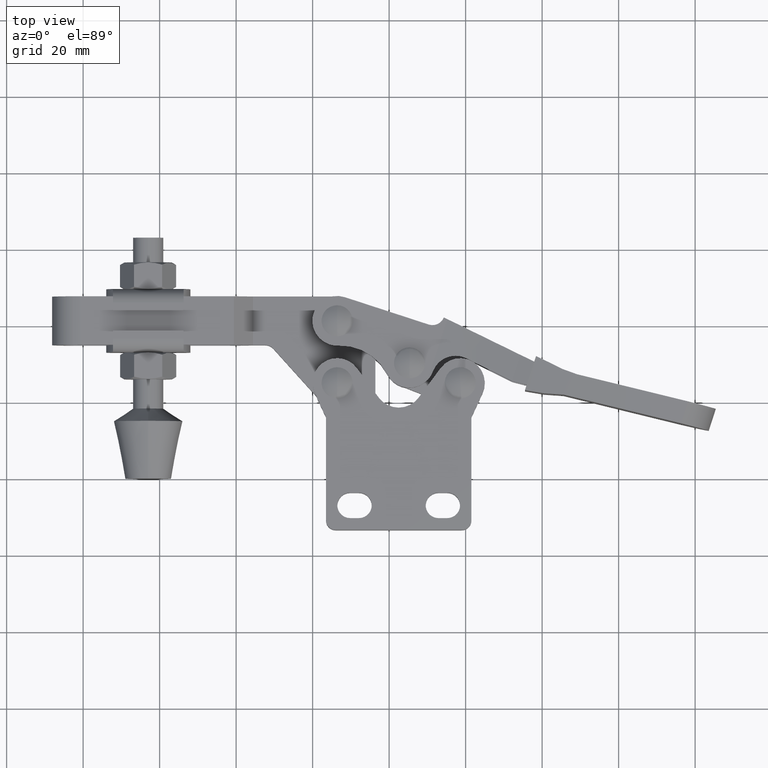
[diagram: clean part render]
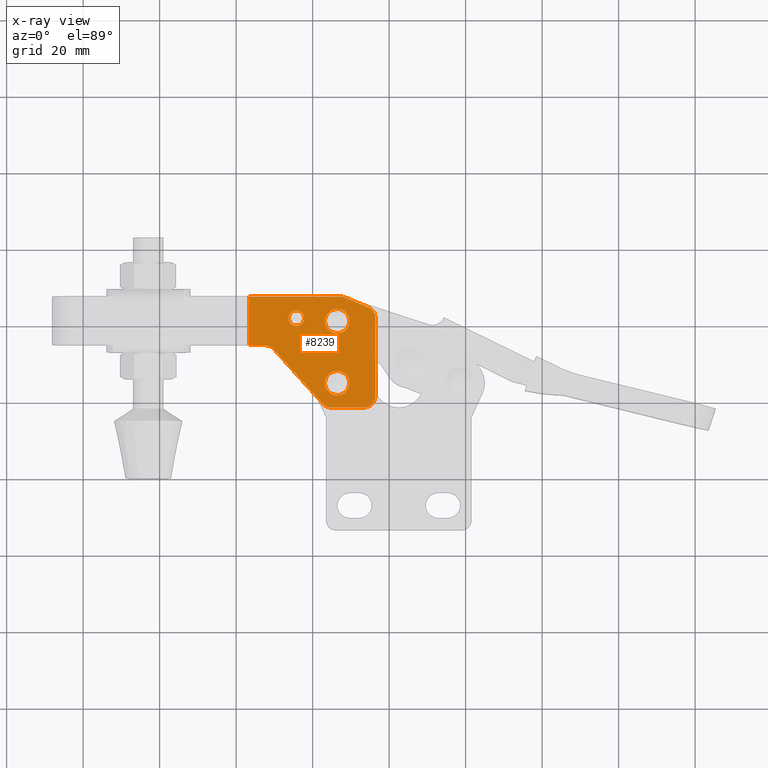
[diagram: x-ray — body ghosted, one internal face saturated and labeled with its STEP entity id]
A machine part, top view, then the same camera in x-ray: the body is ghosted and one INTERNAL B-rep face — a face not visible from any outside direction — is saturated and labeled: STEP entity #8239.
In plain terms, the highlighted planar face has unit normal (0, 0, 1).
Its self-contained STEP definition (entity closure, byte-faithful):
#51 = VECTOR ( 'NONE', #10183, 999.9999999999998900 ) ;
#71 = CARTESIAN_POINT ( 'NONE',  ( 4.915478178523979800, 21.59999707674871400, 0.006213737008450817700 ) ) ;
#107 = ORIENTED_EDGE ( 'NONE', *, *, #9614, .F. ) ;
#209 = AXIS2_PLACEMENT_3D ( 'NONE', #6476, #1558, #7329 ) ;
#241 = FACE_BOUND ( 'NONE', #6194, .T. ) ;
#253 = CARTESIAN_POINT ( 'NONE',  ( 6.399999999992722600, 41.19999707674865200, 0.006213737008450817700 ) ) ;
#259 = VERTEX_POINT ( 'NONE', #401 ) ;
#314 = VERTEX_POINT ( 'NONE', #9242 ) ;
#401 = CARTESIAN_POINT ( 'NONE',  ( -4.250000000007327500, 39.99999707674856400, 0.006213737008450817700 ) ) ;
#455 = EDGE_CURVE ( 'NONE', #6274, #5202, #5215, .T. ) ;
#465 = AXIS2_PLACEMENT_3D ( 'NONE', #253, #5980, #1087 ) ;
#486 = ORIENTED_EDGE ( 'NONE', *, *, #455, .T. ) ;
#526 = VERTEX_POINT ( 'NONE', #765 ) ;
#662 = ORIENTED_EDGE ( 'NONE', *, *, #9995, .T. ) ;
#765 = CARTESIAN_POINT ( 'NONE',  ( 9.574999999992650500, 41.19999707674865200, 0.006213737008450817700 ) ) ;
#871 = VERTEX_POINT ( 'NONE', #6235 ) ;
#882 = VERTEX_POINT ( 'NONE', #1080 ) ;
#893 = CIRCLE ( 'NONE', #4827, 2.000000000000001800 ) ;
#895 = DIRECTION ( 'NONE',  ( 0.0000000000000000000, -1.000000000000000000, 0.0000000000000000000 ) ) ;
#982 = AXIS2_PLACEMENT_3D ( 'NONE', #1390, #7144, #2208 ) ;
#1062 = DIRECTION ( 'NONE',  ( -1.940508389786499800E-033, -3.189280953627393800E-031, -1.000000000000000000 ) ) ;
#1080 = CARTESIAN_POINT ( 'NONE',  ( 9.574999999992650500, 24.99999707674879100, 0.006213737008450817700 ) ) ;
#1087 = DIRECTION ( 'NONE',  ( 0.0000000000000000000, -1.000000000000000000, 0.0000000000000000000 ) ) ;
#1234 = DIRECTION ( 'NONE',  ( -0.6692165548691980700, 0.7430674280904806500, 2.839109783880072900E-029 ) ) ;
#1274 = EDGE_CURVE ( 'NONE', #871, #7034, #3768, .T. ) ;
#1286 = ORIENTED_EDGE ( 'NONE', *, *, #5038, .F. ) ;
#1318 = CARTESIAN_POINT ( 'NONE',  ( 3.224999999992794700, 41.19999707674865200, 0.006213737008450817700 ) ) ;
#1390 = CARTESIAN_POINT ( 'NONE',  ( 13.39999999999262000, 21.59999707674871400, 0.006213737008450817700 ) ) ;
#1442 = CARTESIAN_POINT ( 'NONE',  ( -16.66435846768013500, 34.89999707674869700, 0.006213737008449083000 ) ) ;
#1498 = EDGE_CURVE ( 'NONE', #7827, #4948, #8796, .T. ) ;
#1535 = CARTESIAN_POINT ( 'NONE',  ( -68.10000000000707100, 34.89999707674869700, 0.006213737008450817700 ) ) ;
#1558 = DIRECTION ( 'NONE',  ( 1.940508389786499800E-033, 3.189280953627393800E-031, 1.000000000000000000 ) ) ;
#1587 = VECTOR ( 'NONE', #3381, 1000.000000000000000 ) ;
#1712 = ORIENTED_EDGE ( 'NONE', *, *, #3394, .T. ) ;
#1778 = ORIENTED_EDGE ( 'NONE', *, *, #3289, .T. ) ;
#1801 = AXIS2_PLACEMENT_3D ( 'NONE', #2588, #4154, #4968 ) ;
#1888 = DIRECTION ( 'NONE',  ( 0.0000000000000000000, -1.000000000000000000, 0.0000000000000000000 ) ) ;
#1949 = ORIENTED_EDGE ( 'NONE', *, *, #8623, .T. ) ;
#1969 = CIRCLE ( 'NONE', #1801, 3.174999999999927900 ) ;
#2014 = CARTESIAN_POINT ( 'NONE',  ( -16.66435846768014200, 47.59999707674866400, 0.006213737008450817700 ) ) ;
#2074 = CARTESIAN_POINT ( 'NONE',  ( -25.70849758897743300, 47.59999707674866400, 0.006213737008450817700 ) ) ;
#2099 = VERTEX_POINT ( 'NONE', #6563 ) ;
#2128 = EDGE_CURVE ( 'NONE', #259, #3087, #4141, .T. ) ;
#2183 = ORIENTED_EDGE ( 'NONE', *, *, #9192, .T. ) ;
#2206 = AXIS2_PLACEMENT_3D ( 'NONE', #7643, #10141, #1888 ) ;
#2208 = DIRECTION ( 'NONE',  ( 0.0000000000000000000, -1.000000000000000000, 0.0000000000000000000 ) ) ;
#2309 = ORIENTED_EDGE ( 'NONE', *, *, #6416, .F. ) ;
#2419 = DIRECTION ( 'NONE',  ( -1.940508389786499800E-033, -3.189280953627393800E-031, -1.000000000000000000 ) ) ;
#2435 = EDGE_LOOP ( 'NONE', ( #4852, #107 ) ) ;
#2528 = EDGE_CURVE ( 'NONE', #882, #314, #1969, .T. ) ;
#2560 = EDGE_LOOP ( 'NONE', ( #5133, #2309 ) ) ;
#2588 = CARTESIAN_POINT ( 'NONE',  ( 6.399999999992722600, 24.99999707674879100, 0.006213737008450817700 ) ) ;
#2671 = VERTEX_POINT ( 'NONE', #3600 ) ;
#2844 = CARTESIAN_POINT ( 'NONE',  ( 16.39999999999245600, 42.08881813416093800, 0.006213737008450817700 ) ) ;
#2877 = CIRCLE ( 'NONE', #209, 3.000000000000075500 ) ;
#3046 = VECTOR ( 'NONE', #7686, 1000.000000000000000 ) ;
#3048 = DIRECTION ( 'NONE',  ( -8.673617379884033500E-019, 1.000000000000000000, -1.577721810442023300E-030 ) ) ;
#3087 = VERTEX_POINT ( 'NONE', #9305 ) ;
#3184 = CIRCLE ( 'NONE', #6481, 3.000000000000023500 ) ;
#3268 = DIRECTION ( 'NONE',  ( -1.940508389786499800E-033, -3.189280953627393800E-031, -1.000000000000000000 ) ) ;
#3278 = CARTESIAN_POINT ( 'NONE',  ( -4.250000000007327500, 41.99999707674856400, 0.006213737008450817700 ) ) ;
#3289 = EDGE_CURVE ( 'NONE', #2099, #7034, #10487, .T. ) ;
#3381 = DIRECTION ( 'NONE',  ( 1.000000000000000000, 8.673617379884033500E-019, -4.417621069237665000E-029 ) ) ;
#3394 = EDGE_CURVE ( 'NONE', #4948, #5149, #3446, .T. ) ;
#3437 = EDGE_CURVE ( 'NONE', #3506, #7827, #3184, .T. ) ;
#3446 = CIRCLE ( 'NONE', #4829, 3.000000000000058200 ) ;
#3506 = VERTEX_POINT ( 'NONE', #9105 ) ;
#3600 = CARTESIAN_POINT ( 'NONE',  ( -10.20627589426734400, 33.90764674135629500, 0.006213737008450817700 ) ) ;
#3736 = CARTESIAN_POINT ( 'NONE',  ( -16.66435846768014200, 47.59999707674866400, 0.006213737008450817700 ) ) ;
#3768 = LINE ( 'NONE', #5331, #1587 ) ;
#3824 = FACE_BOUND ( 'NONE', #2560, .T. ) ;
#3850 = CARTESIAN_POINT ( 'NONE',  ( 16.39999999999274000, 47.59999707674866400, 0.006213737008450817700 ) ) ;
#4024 = VECTOR ( 'NONE', #9834, 1000.000000000000000 ) ;
#4073 = DIRECTION ( 'NONE',  ( 0.0000000000000000000, -1.000000000000000000, 0.0000000000000000000 ) ) ;
#4079 = EDGE_CURVE ( 'NONE', #871, #10396, #8032, .T. ) ;
#4141 = CIRCLE ( 'NONE', #2206, 2.000000000000001800 ) ;
#4154 = DIRECTION ( 'NONE',  ( -1.940508389786499800E-033, -3.189280953627393800E-031, -1.000000000000000000 ) ) ;
#4319 = CARTESIAN_POINT ( 'NONE',  ( 8.449102400178132300, 47.37372243148757900, 0.006213737008451685100 ) ) ;
#4464 = EDGE_CURVE ( 'NONE', #526, #4737, #8022, .T. ) ;
#4657 = CIRCLE ( 'NONE', #8473, 3.174999999999927900 ) ;
#4676 = CARTESIAN_POINT ( 'NONE',  ( 2.686275894252385700, 19.59234741214129000, 0.006213737008450817700 ) ) ;
#4725 = PLANE ( 'NONE',  #4838 ) ;
#4737 = VERTEX_POINT ( 'NONE', #1318 ) ;
#4744 = CARTESIAN_POINT ( 'NONE',  ( 13.39999999999239800, 42.08881813416093800, 0.006213737008450817700 ) ) ;
#4779 = EDGE_CURVE ( 'NONE', #2671, #8738, #2877, .T. ) ;
#4827 = AXIS2_PLACEMENT_3D ( 'NONE', #3278, #9017, #4073 ) ;
#4829 = AXIS2_PLACEMENT_3D ( 'NONE', #4744, #10492, #5569 ) ;
#4838 = AXIS2_PLACEMENT_3D ( 'NONE', #7195, #10470, #5551 ) ;
#4852 = ORIENTED_EDGE ( 'NONE', *, *, #4464, .F. ) ;
#4948 = VERTEX_POINT ( 'NONE', #4997 ) ;
#4968 = DIRECTION ( 'NONE',  ( 0.0000000000000000000, -1.000000000000000000, 0.0000000000000000000 ) ) ;
#4997 = CARTESIAN_POINT ( 'NONE',  ( 14.54299941227576900, 44.86254348889961800, 0.006213737008450817700 ) ) ;
#5038 = EDGE_CURVE ( 'NONE', #314, #882, #4657, .T. ) ;
#5133 = ORIENTED_EDGE ( 'NONE', *, *, #2128, .F. ) ;
#5149 = VERTEX_POINT ( 'NONE', #2844 ) ;
#5202 = VERTEX_POINT ( 'NONE', #3736 ) ;
#5215 = LINE ( 'NONE', #2014, #3046 ) ;
#5331 = CARTESIAN_POINT ( 'NONE',  ( -25.70849758897743300, 18.59999707674865700, 0.006213737008450817700 ) ) ;
#5551 = DIRECTION ( 'NONE',  ( 8.673617379884033500E-019, -1.000000000000000000, 1.577721810442023300E-030 ) ) ;
#5569 = DIRECTION ( 'NONE',  ( 0.0000000000000000000, -1.000000000000000000, 0.0000000000000000000 ) ) ;
#5605 = VECTOR ( 'NONE', #8689, 1000.000000000000000 ) ;
#5647 = CARTESIAN_POINT ( 'NONE',  ( 13.39999999999262000, 18.59999707674865700, 0.006213737008450817700 ) ) ;
#5743 = FACE_OUTER_BOUND ( 'NONE', #8779, .T. ) ;
#5798 = DIRECTION ( 'NONE',  ( -1.940508389786499800E-033, -3.189280953627393800E-031, -1.000000000000000000 ) ) ;
#5880 = ORIENTED_EDGE ( 'NONE', *, *, #1498, .T. ) ;
#5957 = CARTESIAN_POINT ( 'NONE',  ( 6.399999999992722600, 24.99999707674879100, 0.006213737008450817700 ) ) ;
#5980 = DIRECTION ( 'NONE',  ( -1.940508389786499800E-033, -3.189280953627393800E-031, -1.000000000000000000 ) ) ;
#6140 = CARTESIAN_POINT ( 'NONE',  ( 2.686275894252385700, 19.59234741214129000, 0.006213737008450817700 ) ) ;
#6194 = EDGE_LOOP ( 'NONE', ( #7403, #1286 ) ) ;
#6235 = CARTESIAN_POINT ( 'NONE',  ( 4.915478178523979800, 18.59999707674865700, 0.006213737008450817700 ) ) ;
#6274 = VERTEX_POINT ( 'NONE', #1442 ) ;
#6416 = EDGE_CURVE ( 'NONE', #3087, #259, #893, .T. ) ;
#6476 = CARTESIAN_POINT ( 'NONE',  ( -12.43547817853888500, 31.89999707674869700, 0.006213737008450817700 ) ) ;
#6481 = AXIS2_PLACEMENT_3D ( 'NONE', #7361, #2419, #8167 ) ;
#6563 = CARTESIAN_POINT ( 'NONE',  ( 16.39999999999274000, 21.59999707674871400, 0.006213737008450817700 ) ) ;
#6741 = CIRCLE ( 'NONE', #465, 3.174999999999927900 ) ;
#6793 = CARTESIAN_POINT ( 'NONE',  ( 8.449102400178132300, 47.37372243148757900, 0.006213737008451685100 ) ) ;
#6800 = DIRECTION ( 'NONE',  ( 0.0000000000000000000, -1.000000000000000000, 0.0000000000000000000 ) ) ;
#6871 = ORIENTED_EDGE ( 'NONE', *, *, #1274, .F. ) ;
#7034 = VERTEX_POINT ( 'NONE', #5647 ) ;
#7124 = AXIS2_PLACEMENT_3D ( 'NONE', #8175, #3268, #9010 ) ;
#7144 = DIRECTION ( 'NONE',  ( -1.940508389786499800E-033, -3.189280953627393800E-031, -1.000000000000000000 ) ) ;
#7195 = CARTESIAN_POINT ( 'NONE',  ( -25.70849758897743300, 18.59999707674865700, 0.006213737008450817700 ) ) ;
#7309 = LINE ( 'NONE', #3850, #9229 ) ;
#7329 = DIRECTION ( 'NONE',  ( 0.0000000000000000000, -1.000000000000000000, 0.0000000000000000000 ) ) ;
#7361 = CARTESIAN_POINT ( 'NONE',  ( 7.306102987895224400, 44.59999707674872800, 0.006213737008450817700 ) ) ;
#7403 = ORIENTED_EDGE ( 'NONE', *, *, #2528, .F. ) ;
#7643 = CARTESIAN_POINT ( 'NONE',  ( -4.250000000007327500, 41.99999707674856400, 0.006213737008450817700 ) ) ;
#7686 = DIRECTION ( 'NONE',  ( -8.673617379884033500E-019, 1.000000000000000000, -1.577721810442023300E-030 ) ) ;
#7827 = VERTEX_POINT ( 'NONE', #6793 ) ;
#7945 = FACE_BOUND ( 'NONE', #2435, .T. ) ;
#7989 = CARTESIAN_POINT ( 'NONE',  ( -12.43547817853888500, 34.89999707674877500, 0.006213737008450817700 ) ) ;
#8022 = CIRCLE ( 'NONE', #7124, 3.174999999999927900 ) ;
#8032 = CIRCLE ( 'NONE', #8636, 3.000000000000002700 ) ;
#8058 = LINE ( 'NONE', #2074, #5605 ) ;
#8167 = DIRECTION ( 'NONE',  ( -3.469446951953587000E-015, -1.000000000000000000, 0.0000000000000000000 ) ) ;
#8175 = CARTESIAN_POINT ( 'NONE',  ( 6.399999999992722600, 41.19999707674865200, 0.006213737008450817700 ) ) ;
#8239 = ADVANCED_FACE ( 'NONE', ( #7945, #241, #5743, #3824 ), #4725, .F. ) ;
#8403 = LINE ( 'NONE', #1535, #4024 ) ;
#8473 = AXIS2_PLACEMENT_3D ( 'NONE', #5957, #1062, #6800 ) ;
#8563 = LINE ( 'NONE', #6140, #10469 ) ;
#8623 = EDGE_CURVE ( 'NONE', #5202, #3506, #8058, .T. ) ;
#8636 = AXIS2_PLACEMENT_3D ( 'NONE', #71, #5798, #895 ) ;
#8689 = DIRECTION ( 'NONE',  ( 1.000000000000000000, 8.673617379884033500E-019, -4.417621069237665000E-029 ) ) ;
#8703 = ORIENTED_EDGE ( 'NONE', *, *, #3437, .T. ) ;
#8717 = EDGE_CURVE ( 'NONE', #2099, #5149, #7309, .T. ) ;
#8738 = VERTEX_POINT ( 'NONE', #7989 ) ;
#8779 = EDGE_LOOP ( 'NONE', ( #9133, #2183, #10551, #662, #486, #1949, #8703, #5880, #1712, #10639, #1778, #6871 ) ) ;
#8796 = LINE ( 'NONE', #4319, #51 ) ;
#9010 = DIRECTION ( 'NONE',  ( 0.0000000000000000000, -1.000000000000000000, 0.0000000000000000000 ) ) ;
#9017 = DIRECTION ( 'NONE',  ( -1.940508389786499800E-033, -3.189280953627393800E-031, -1.000000000000000000 ) ) ;
#9105 = CARTESIAN_POINT ( 'NONE',  ( 7.306102987895224400, 47.59999707674866400, 0.006213737008450817700 ) ) ;
#9133 = ORIENTED_EDGE ( 'NONE', *, *, #4079, .T. ) ;
#9192 = EDGE_CURVE ( 'NONE', #10396, #2671, #8563, .T. ) ;
#9229 = VECTOR ( 'NONE', #3048, 1000.000000000000000 ) ;
#9242 = CARTESIAN_POINT ( 'NONE',  ( 3.224999999992793900, 24.99999707674879100, 0.006213737008450817700 ) ) ;
#9305 = CARTESIAN_POINT ( 'NONE',  ( -4.250000000007327500, 43.99999707674856400, 0.006213737008450817700 ) ) ;
#9614 = EDGE_CURVE ( 'NONE', #4737, #526, #6741, .T. ) ;
#9834 = DIRECTION ( 'NONE',  ( -1.000000000000000000, -8.673617379884033500E-019, 4.417621069237665000E-029 ) ) ;
#9995 = EDGE_CURVE ( 'NONE', #8738, #6274, #8403, .T. ) ;
#10141 = DIRECTION ( 'NONE',  ( -1.940508389786499800E-033, -3.189280953627393800E-031, -1.000000000000000000 ) ) ;
#10183 = DIRECTION ( 'NONE',  ( 0.9245751182462229600, -0.3809998040944154700, -4.024311352388030500E-029 ) ) ;
#10396 = VERTEX_POINT ( 'NONE', #4676 ) ;
#10469 = VECTOR ( 'NONE', #1234, 1000.000000000000100 ) ;
#10470 = DIRECTION ( 'NONE',  ( 1.940508389786498800E-033, 1.577721810442023300E-030, 1.000000000000000000 ) ) ;
#10487 = CIRCLE ( 'NONE', #982, 3.000000000000058200 ) ;
#10492 = DIRECTION ( 'NONE',  ( -1.940508389786499800E-033, -3.189280953627393800E-031, -1.000000000000000000 ) ) ;
#10551 = ORIENTED_EDGE ( 'NONE', *, *, #4779, .T. ) ;
#10639 = ORIENTED_EDGE ( 'NONE', *, *, #8717, .F. ) ;